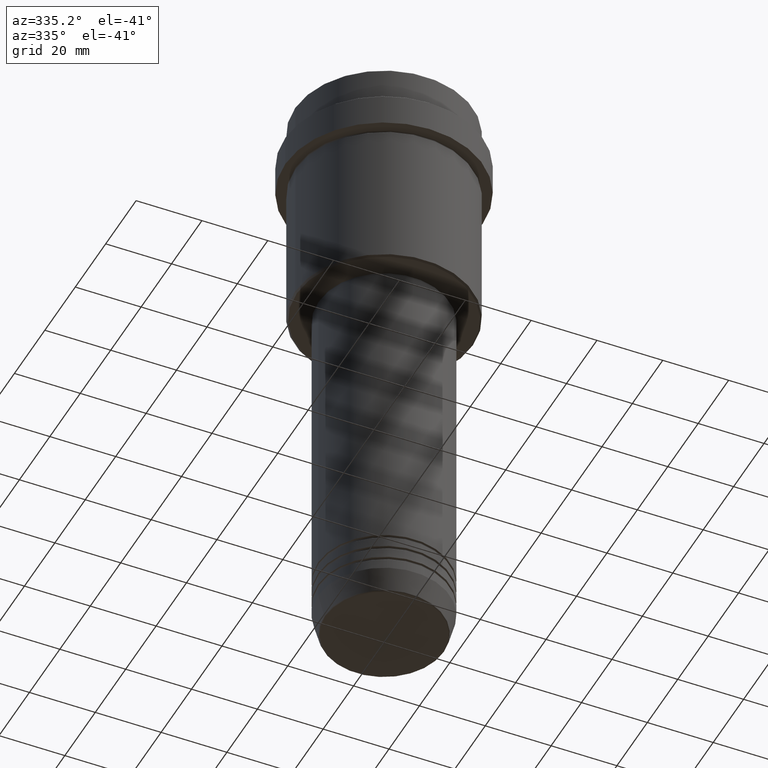
[diagram: clean part render]
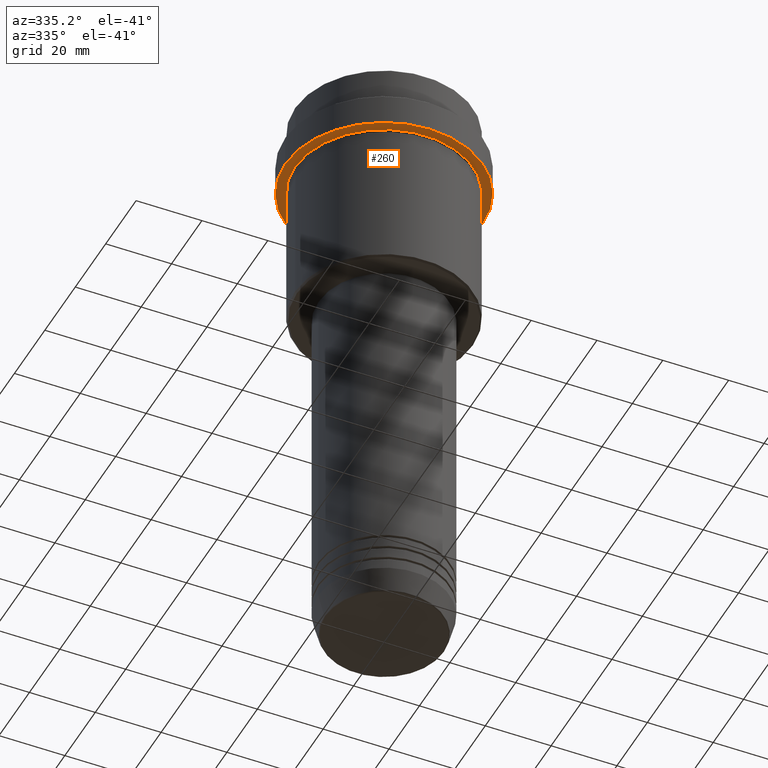
[diagram: same view with one face highlighted and labeled with its STEP entity id]
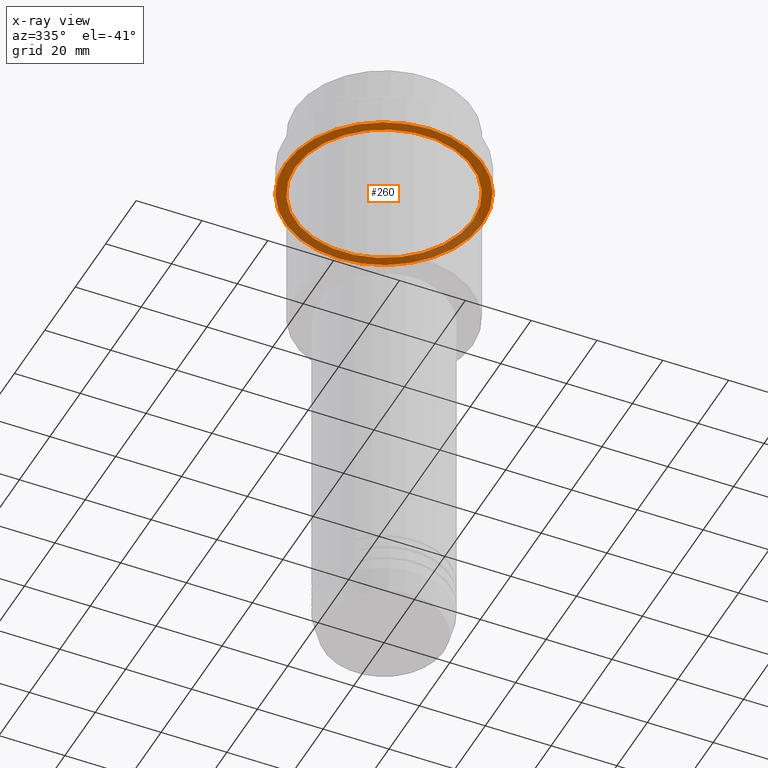
[diagram: x-ray of the same camera — body ghosted, the highlighted face saturated]
A machine part, auxiliary view. The second image highlights one B-rep face of the part: STEP entity #260.
The next image is the same camera in x-ray: the body ghosted, the highlighted face saturated — about 38% of this face is hidden behind the body in this view.
In plain terms, the highlighted planar face has unit normal (0, 0, -1).
Its self-contained STEP definition (entity closure, byte-faithful):
#42 = FACE_BOUND ( 'NONE', #337, .T. ) ;
#58 = AXIS2_PLACEMENT_3D ( 'NONE', #1182, #515, #402 ) ;
#140 = ORIENTED_EDGE ( 'NONE', *, *, #1199, .T. ) ;
#142 = FACE_OUTER_BOUND ( 'NONE', #399, .T. ) ;
#143 = CIRCLE ( 'NONE', #396, 26.99999999999999289 ) ;
#161 = DIRECTION ( 'NONE',  ( -0.000000000000000000, -0.000000000000000000, 1.000000000000000000 ) ) ;
#179 = CARTESIAN_POINT ( 'NONE',  ( 26.99999999999999289, 3.306546357697852944E-15, -22.00000000000000000 ) ) ;
#186 = CARTESIAN_POINT ( 'NONE',  ( 0.000000000000000000, 0.000000000000000000, -22.00000000000000355 ) ) ;
#193 = DIRECTION ( 'NONE',  ( 1.000000000000000000, 0.000000000000000000, 0.000000000000000000 ) ) ;
#231 = VERTEX_POINT ( 'NONE', #1042 ) ;
#246 = AXIS2_PLACEMENT_3D ( 'NONE', #186, #161, #193 ) ;
#260 = ADVANCED_FACE ( 'NONE', ( #42, #142 ), #1151, .T. ) ;
#337 = EDGE_LOOP ( 'NONE', ( #140, #1227 ) ) ;
#348 = CARTESIAN_POINT ( 'NONE',  ( 0.000000000000000000, 0.000000000000000000, -22.00000000000000000 ) ) ;
#351 = EDGE_CURVE ( 'NONE', #231, #1103, #579, .T. ) ;
#396 = AXIS2_PLACEMENT_3D ( 'NONE', #348, #701, #1135 ) ;
#399 = EDGE_LOOP ( 'NONE', ( #1223, #668 ) ) ;
#402 = DIRECTION ( 'NONE',  ( -1.000000000000000000, 0.000000000000000000, 0.000000000000000000 ) ) ;
#475 = DIRECTION ( 'NONE',  ( 0.000000000000000000, 0.000000000000000000, -1.000000000000000000 ) ) ;
#515 = DIRECTION ( 'NONE',  ( -0.000000000000000000, -0.000000000000000000, 1.000000000000000000 ) ) ;
#579 = CIRCLE ( 'NONE', #246, 29.99999999999999645 ) ;
#668 = ORIENTED_EDGE ( 'NONE', *, *, #1015, .F. ) ;
#694 = DIRECTION ( 'NONE',  ( 1.000000000000000000, 0.000000000000000000, 0.000000000000000000 ) ) ;
#701 = DIRECTION ( 'NONE',  ( -0.000000000000000000, -0.000000000000000000, 1.000000000000000000 ) ) ;
#764 = AXIS2_PLACEMENT_3D ( 'NONE', #823, #475, #812 ) ;
#812 = DIRECTION ( 'NONE',  ( -1.000000000000000000, 0.000000000000000000, -0.000000000000000000 ) ) ;
#816 = VERTEX_POINT ( 'NONE', #1339 ) ;
#823 = CARTESIAN_POINT ( 'NONE',  ( 0.000000000000000000, 29.99999999999999645, -22.00000000000000000 ) ) ;
#953 = EDGE_CURVE ( 'NONE', #1288, #816, #1127, .T. ) ;
#1015 = EDGE_CURVE ( 'NONE', #1103, #231, #1215, .T. ) ;
#1042 = CARTESIAN_POINT ( 'NONE',  ( 29.99999999999999645, 0.000000000000000000, -22.00000000000000355 ) ) ;
#1103 = VERTEX_POINT ( 'NONE', #1224 ) ;
#1127 = CIRCLE ( 'NONE', #58, 26.99999999999999289 ) ;
#1133 = DIRECTION ( 'NONE',  ( -0.000000000000000000, -0.000000000000000000, 1.000000000000000000 ) ) ;
#1135 = DIRECTION ( 'NONE',  ( -1.000000000000000000, 0.000000000000000000, 0.000000000000000000 ) ) ;
#1151 = PLANE ( 'NONE',  #764 ) ;
#1182 = CARTESIAN_POINT ( 'NONE',  ( 0.000000000000000000, 0.000000000000000000, -22.00000000000000000 ) ) ;
#1187 = AXIS2_PLACEMENT_3D ( 'NONE', #1244, #1133, #694 ) ;
#1199 = EDGE_CURVE ( 'NONE', #816, #1288, #143, .T. ) ;
#1215 = CIRCLE ( 'NONE', #1187, 29.99999999999999645 ) ;
#1223 = ORIENTED_EDGE ( 'NONE', *, *, #351, .F. ) ;
#1224 = CARTESIAN_POINT ( 'NONE',  ( -29.99999999999999645, 3.673940397442058389E-15, -22.00000000000000355 ) ) ;
#1227 = ORIENTED_EDGE ( 'NONE', *, *, #953, .T. ) ;
#1244 = CARTESIAN_POINT ( 'NONE',  ( 0.000000000000000000, 0.000000000000000000, -22.00000000000000355 ) ) ;
#1288 = VERTEX_POINT ( 'NONE', #179 ) ;
#1339 = CARTESIAN_POINT ( 'NONE',  ( -26.99999999999999289, 0.000000000000000000, -22.00000000000000000 ) ) ;